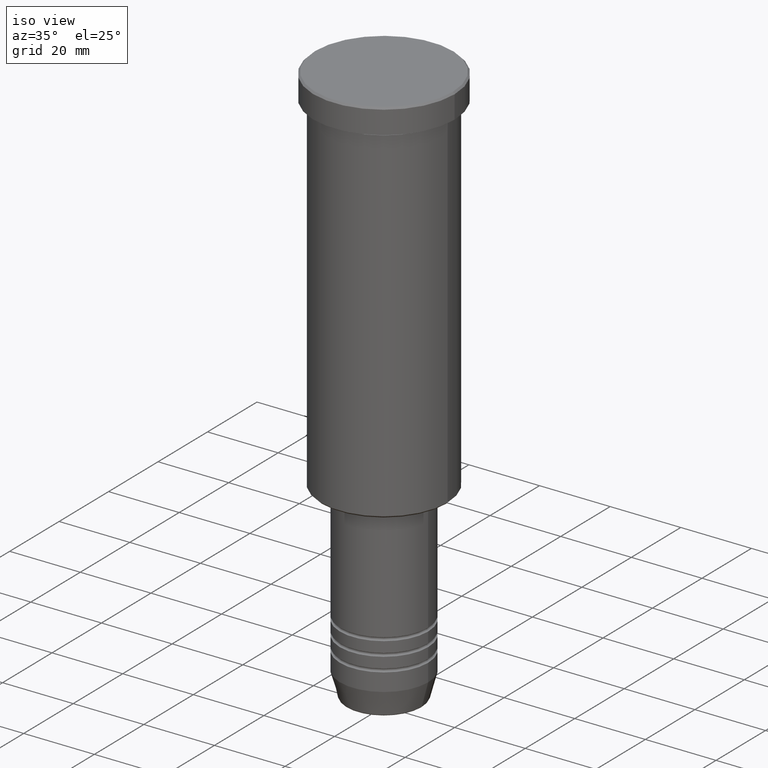
[diagram: clean part render]
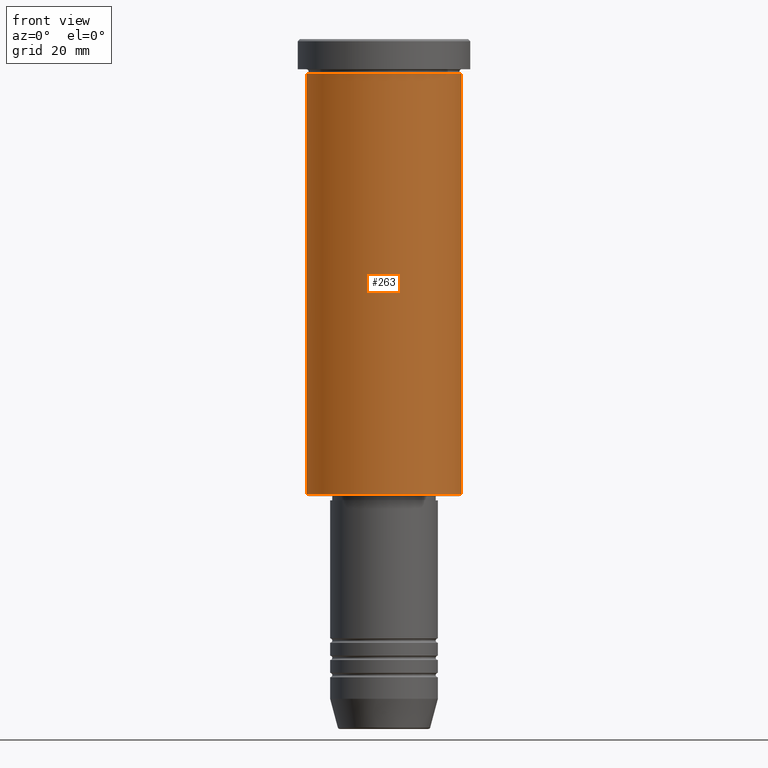
[diagram: tour spotlight — one face highlighted and labeled with its STEP entity id]
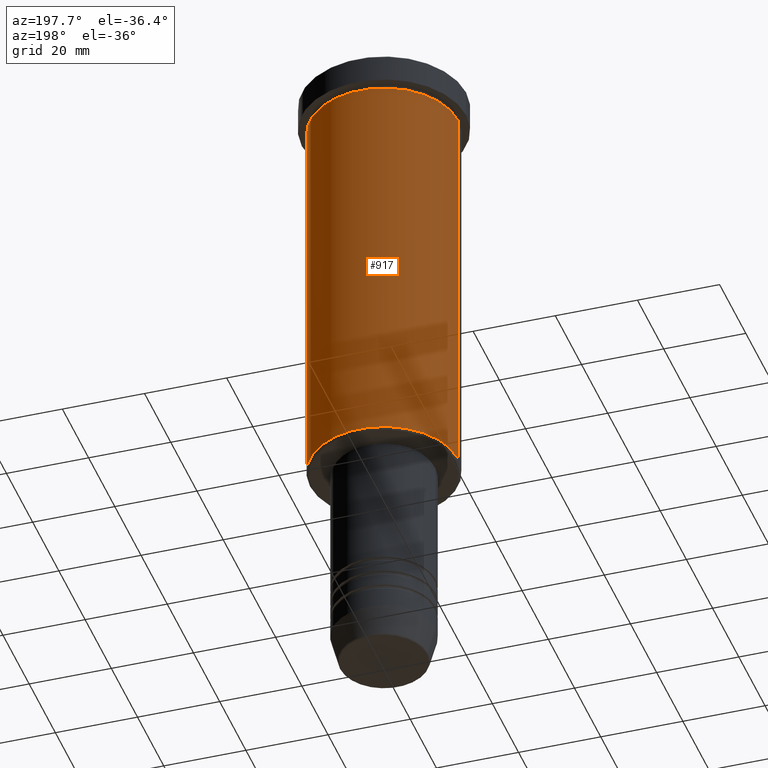
[diagram: tour spotlight — one face highlighted and labeled with its STEP entity id]
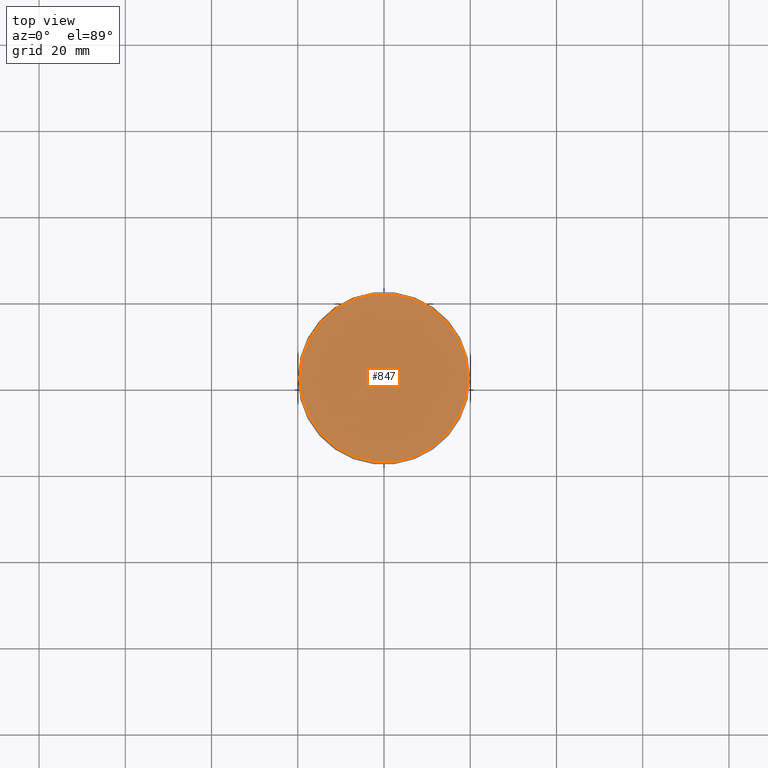
[diagram: tour spotlight — one face highlighted and labeled with its STEP entity id]
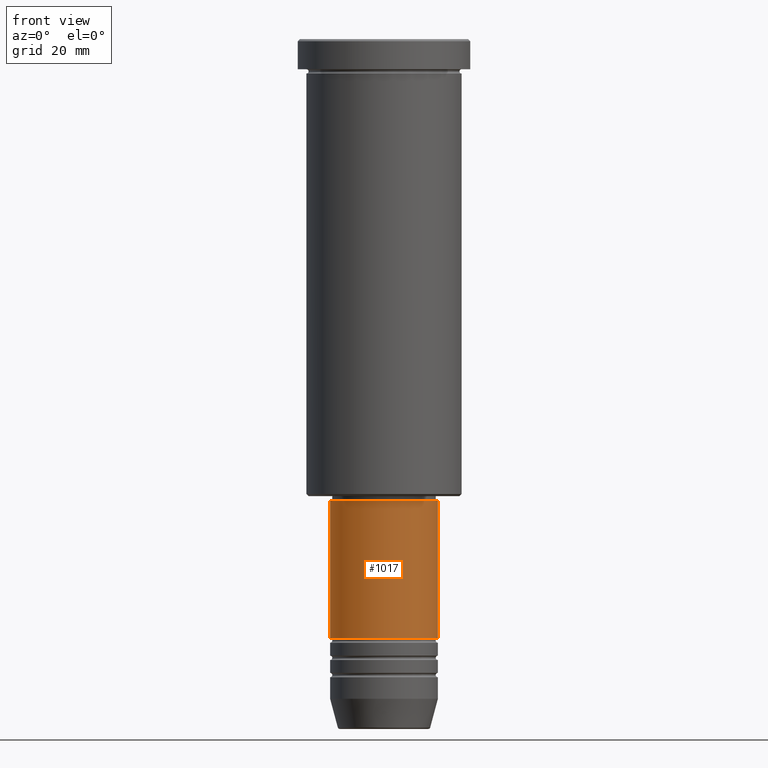
[diagram: tour spotlight — one face highlighted and labeled with its STEP entity id]
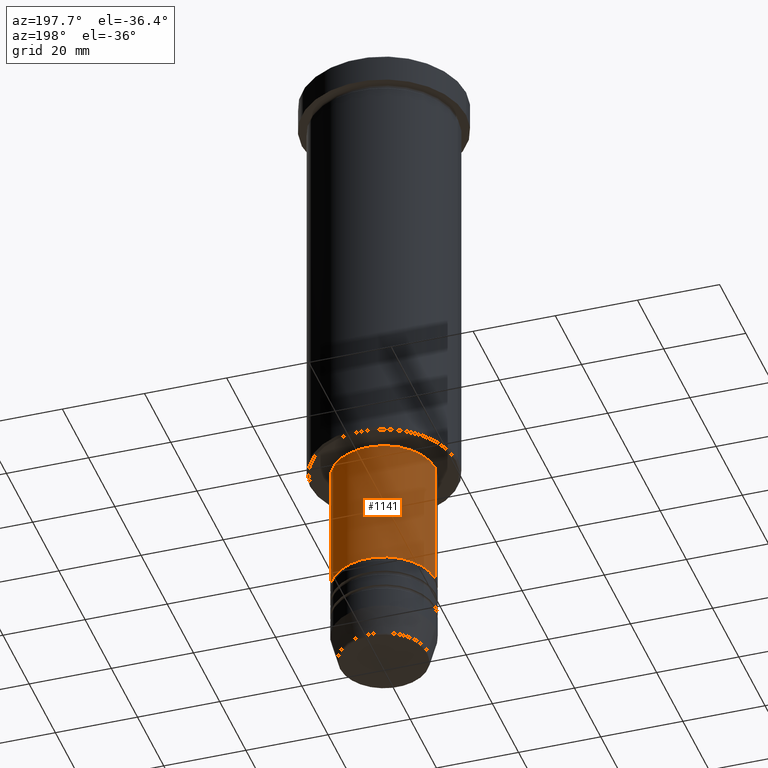
[diagram: tour spotlight — one face highlighted and labeled with its STEP entity id]
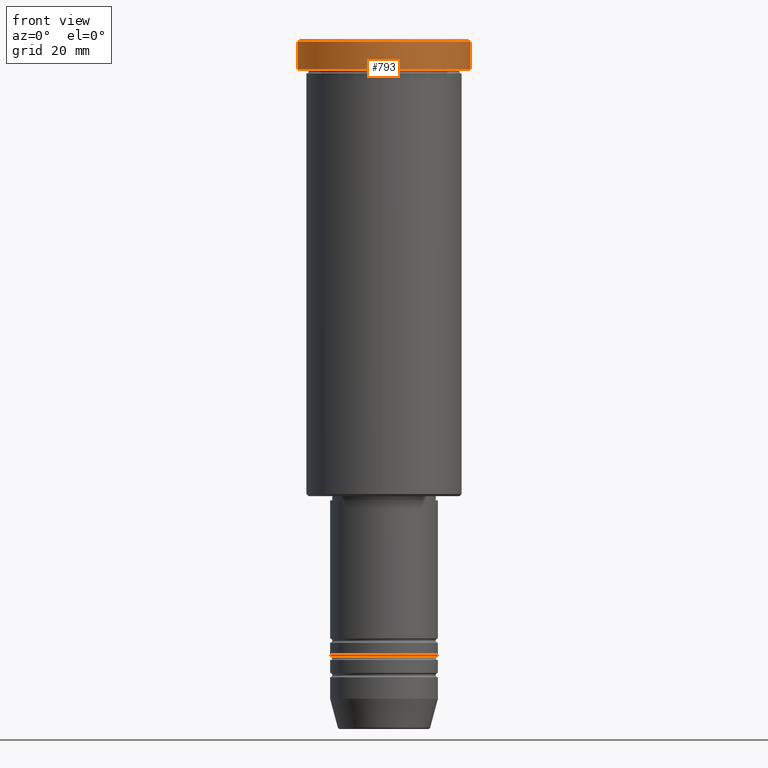
[diagram: tour spotlight — one face highlighted and labeled with its STEP entity id]
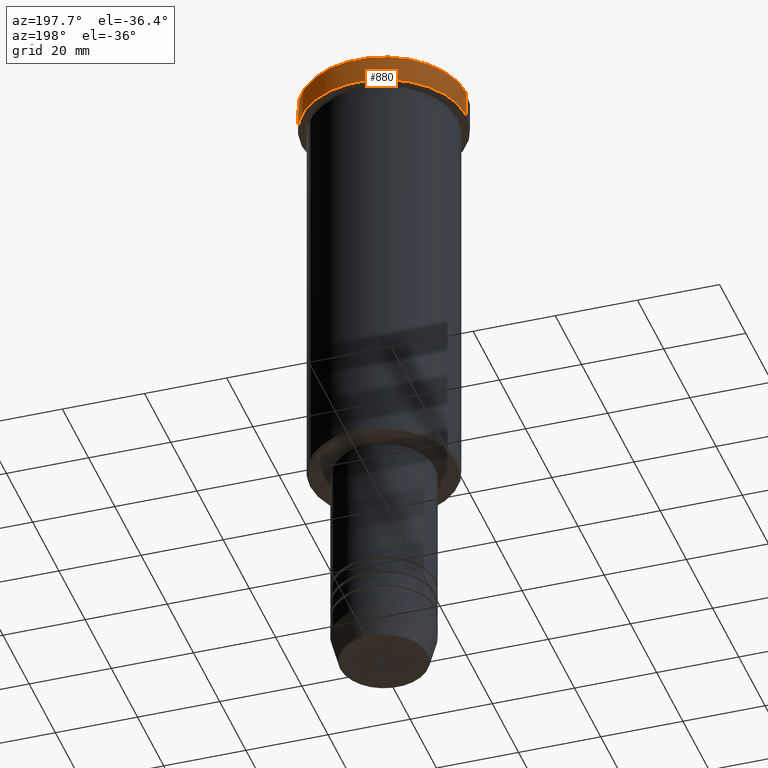
[diagram: tour spotlight — one face highlighted and labeled with its STEP entity id]
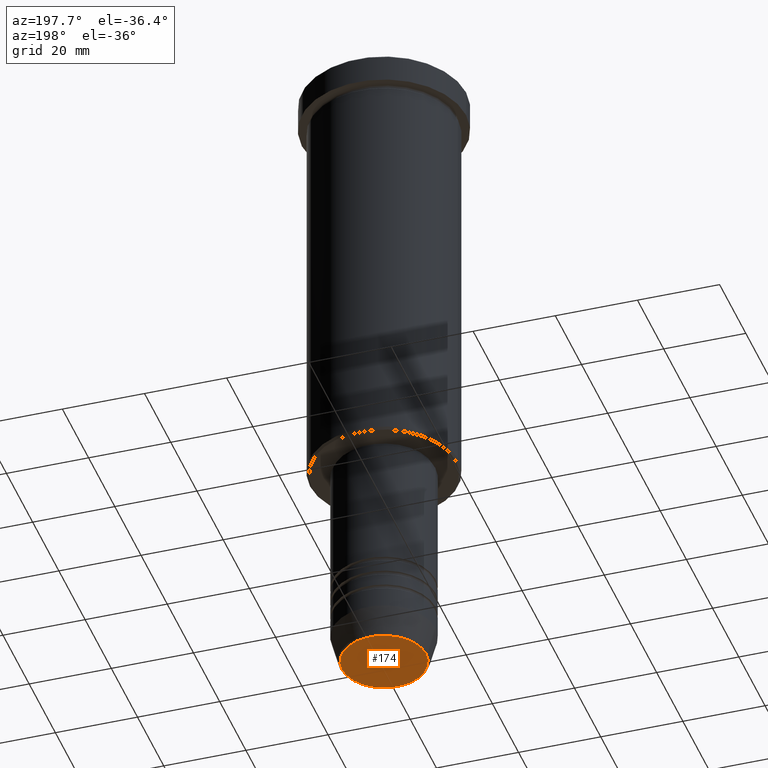
[diagram: tour spotlight — one face highlighted and labeled with its STEP entity id]
A machine part: a face-by-face anatomy tour. The part has 43 B-rep faces; the first image is the clean iso view, then the 8 largest visible faces are spotlighted one at a time (largest first), each with its STEP entity span.

Face 1 — front view, entity #263. In plain terms, the highlighted cylindrical surface (partial cylindrical patch) has radius 18 mm, axis along (-0, -0, 1).
Definition (entity closure, byte-faithful):
#1 = CARTESIAN_POINT ( 'NONE',  ( -18.00000000000000000, 2.204364238465235428E-15, -7.999999999999996447 ) ) ;
#18 = CARTESIAN_POINT ( 'NONE',  ( 0.000000000000000000, 0.000000000000000000, -7.999999999999996447 ) ) ;
#47 = LINE ( 'NONE', #591, #856 ) ;
#61 = VERTEX_POINT ( 'NONE', #948 ) ;
#75 = CARTESIAN_POINT ( 'NONE',  ( 18.00000000000000000, 0.000000000000000000, 0.000000000000000000 ) ) ;
#88 = DIRECTION ( 'NONE',  ( -0.000000000000000000, -0.000000000000000000, 1.000000000000000000 ) ) ;
#123 = CARTESIAN_POINT ( 'NONE',  ( -18.00000000000000000, 2.204364238465235428E-15, -105.5000000000000000 ) ) ;
#155 = FACE_OUTER_BOUND ( 'NONE', #677, .T. ) ;
#232 = EDGE_CURVE ( 'NONE', #849, #61, #1066, .T. ) ;
#238 = CARTESIAN_POINT ( 'NONE',  ( 0.000000000000000000, 0.000000000000000000, -105.5000000000000000 ) ) ;
#255 = DIRECTION ( 'NONE',  ( -0.000000000000000000, -0.000000000000000000, 1.000000000000000000 ) ) ;
#263 = ADVANCED_FACE ( 'NONE', ( #155 ), #698, .T. ) ;
#278 = EDGE_CURVE ( 'NONE', #61, #314, #518, .T. ) ;
#314 = VERTEX_POINT ( 'NONE', #423 ) ;
#346 = VERTEX_POINT ( 'NONE', #1 ) ;
#409 = AXIS2_PLACEMENT_3D ( 'NONE', #238, #255, #612 ) ;
#417 = CARTESIAN_POINT ( 'NONE',  ( 0.000000000000000000, 0.000000000000000000, 0.000000000000000000 ) ) ;
#423 = CARTESIAN_POINT ( 'NONE',  ( 18.00000000000000000, 0.000000000000000000, -7.999999999999996447 ) ) ;
#483 = ORIENTED_EDGE ( 'NONE', *, *, #278, .T. ) ;
#487 = DIRECTION ( 'NONE',  ( -0.000000000000000000, -0.000000000000000000, 1.000000000000000000 ) ) ;
#518 = LINE ( 'NONE', #75, #1166 ) ;
#578 = DIRECTION ( 'NONE',  ( -0.000000000000000000, -0.000000000000000000, 1.000000000000000000 ) ) ;
#591 = CARTESIAN_POINT ( 'NONE',  ( -18.00000000000000000, 2.204364238465235428E-15, 0.000000000000000000 ) ) ;
#610 = ORIENTED_EDGE ( 'NONE', *, *, #637, .F. ) ;
#612 = DIRECTION ( 'NONE',  ( -1.000000000000000000, 0.000000000000000000, 0.000000000000000000 ) ) ;
#637 = EDGE_CURVE ( 'NONE', #346, #314, #894, .T. ) ;
#677 = EDGE_LOOP ( 'NONE', ( #1030, #905, #483, #610 ) ) ;
#698 = CYLINDRICAL_SURFACE ( 'NONE', #796, 18.00000000000000000 ) ;
#796 = AXIS2_PLACEMENT_3D ( 'NONE', #417, #88, #887 ) ;
#849 = VERTEX_POINT ( 'NONE', #123 ) ;
#856 = VECTOR ( 'NONE', #487, 1000.000000000000000 ) ;
#887 = DIRECTION ( 'NONE',  ( 1.000000000000000000, 0.000000000000000000, 0.000000000000000000 ) ) ;
#894 = CIRCLE ( 'NONE', #1010, 18.00000000000000000 ) ;
#905 = ORIENTED_EDGE ( 'NONE', *, *, #232, .T. ) ;
#948 = CARTESIAN_POINT ( 'NONE',  ( 18.00000000000000000, 0.000000000000000000, -105.5000000000000000 ) ) ;
#992 = DIRECTION ( 'NONE',  ( -0.000000000000000000, -0.000000000000000000, 1.000000000000000000 ) ) ;
#1010 = AXIS2_PLACEMENT_3D ( 'NONE', #18, #578, #1121 ) ;
#1030 = ORIENTED_EDGE ( 'NONE', *, *, #1130, .F. ) ;
#1066 = CIRCLE ( 'NONE', #409, 18.00000000000000000 ) ;
#1121 = DIRECTION ( 'NONE',  ( 1.000000000000000000, 0.000000000000000000, 0.000000000000000000 ) ) ;
#1130 = EDGE_CURVE ( 'NONE', #849, #346, #47, .T. ) ;
#1166 = VECTOR ( 'NONE', #992, 1000.000000000000000 ) ;

Face 2 — auxiliary view, entity #917. In plain terms, the highlighted cylindrical surface (partial cylindrical patch) has radius 18 mm, axis along (-0, -0, 1).
Definition (entity closure, byte-faithful):
#1 = CARTESIAN_POINT ( 'NONE',  ( -18.00000000000000000, 2.204364238465235428E-15, -7.999999999999996447 ) ) ;
#47 = LINE ( 'NONE', #591, #856 ) ;
#61 = VERTEX_POINT ( 'NONE', #948 ) ;
#65 = EDGE_LOOP ( 'NONE', ( #184, #542, #1078, #603 ) ) ;
#75 = CARTESIAN_POINT ( 'NONE',  ( 18.00000000000000000, 0.000000000000000000, 0.000000000000000000 ) ) ;
#123 = CARTESIAN_POINT ( 'NONE',  ( -18.00000000000000000, 2.204364238465235428E-15, -105.5000000000000000 ) ) ;
#134 = DIRECTION ( 'NONE',  ( -0.000000000000000000, -0.000000000000000000, 1.000000000000000000 ) ) ;
#184 = ORIENTED_EDGE ( 'NONE', *, *, #384, .T. ) ;
#199 = DIRECTION ( 'NONE',  ( -0.000000000000000000, -0.000000000000000000, 1.000000000000000000 ) ) ;
#278 = EDGE_CURVE ( 'NONE', #61, #314, #518, .T. ) ;
#288 = CARTESIAN_POINT ( 'NONE',  ( 0.000000000000000000, 0.000000000000000000, 0.000000000000000000 ) ) ;
#314 = VERTEX_POINT ( 'NONE', #423 ) ;
#346 = VERTEX_POINT ( 'NONE', #1 ) ;
#371 = CIRCLE ( 'NONE', #512, 18.00000000000000000 ) ;
#384 = EDGE_CURVE ( 'NONE', #61, #849, #371, .T. ) ;
#423 = CARTESIAN_POINT ( 'NONE',  ( 18.00000000000000000, 0.000000000000000000, -7.999999999999996447 ) ) ;
#452 = AXIS2_PLACEMENT_3D ( 'NONE', #288, #199, #922 ) ;
#462 = FACE_OUTER_BOUND ( 'NONE', #65, .T. ) ;
#487 = DIRECTION ( 'NONE',  ( -0.000000000000000000, -0.000000000000000000, 1.000000000000000000 ) ) ;
#512 = AXIS2_PLACEMENT_3D ( 'NONE', #584, #134, #857 ) ;
#514 = AXIS2_PLACEMENT_3D ( 'NONE', #1171, #710, #1074 ) ;
#518 = LINE ( 'NONE', #75, #1166 ) ;
#542 = ORIENTED_EDGE ( 'NONE', *, *, #1130, .T. ) ;
#584 = CARTESIAN_POINT ( 'NONE',  ( 0.000000000000000000, 0.000000000000000000, -105.5000000000000000 ) ) ;
#591 = CARTESIAN_POINT ( 'NONE',  ( -18.00000000000000000, 2.204364238465235428E-15, 0.000000000000000000 ) ) ;
#603 = ORIENTED_EDGE ( 'NONE', *, *, #278, .F. ) ;
#696 = EDGE_CURVE ( 'NONE', #314, #346, #777, .T. ) ;
#710 = DIRECTION ( 'NONE',  ( -0.000000000000000000, -0.000000000000000000, 1.000000000000000000 ) ) ;
#777 = CIRCLE ( 'NONE', #514, 18.00000000000000000 ) ;
#823 = CYLINDRICAL_SURFACE ( 'NONE', #452, 18.00000000000000000 ) ;
#849 = VERTEX_POINT ( 'NONE', #123 ) ;
#856 = VECTOR ( 'NONE', #487, 1000.000000000000000 ) ;
#857 = DIRECTION ( 'NONE',  ( -1.000000000000000000, 0.000000000000000000, 0.000000000000000000 ) ) ;
#917 = ADVANCED_FACE ( 'NONE', ( #462 ), #823, .T. ) ;
#922 = DIRECTION ( 'NONE',  ( 1.000000000000000000, 0.000000000000000000, 0.000000000000000000 ) ) ;
#948 = CARTESIAN_POINT ( 'NONE',  ( 18.00000000000000000, 0.000000000000000000, -105.5000000000000000 ) ) ;
#992 = DIRECTION ( 'NONE',  ( -0.000000000000000000, -0.000000000000000000, 1.000000000000000000 ) ) ;
#1074 = DIRECTION ( 'NONE',  ( 1.000000000000000000, 0.000000000000000000, 0.000000000000000000 ) ) ;
#1078 = ORIENTED_EDGE ( 'NONE', *, *, #696, .F. ) ;
#1130 = EDGE_CURVE ( 'NONE', #849, #346, #47, .T. ) ;
#1166 = VECTOR ( 'NONE', #992, 1000.000000000000000 ) ;
#1171 = CARTESIAN_POINT ( 'NONE',  ( 0.000000000000000000, 0.000000000000000000, -7.999999999999996447 ) ) ;

Face 3 — top view, entity #847. In plain terms, the highlighted planar face has unit normal (0, -0, 1).
Definition (entity closure, byte-faithful):
#22 = CARTESIAN_POINT ( 'NONE',  ( 19.49999999999996092, 2.418677428316020359E-15, 0.000000000000000000 ) ) ;
#26 = CARTESIAN_POINT ( 'NONE',  ( 0.000000000000000000, 0.000000000000000000, 0.000000000000000000 ) ) ;
#27 = PLANE ( 'NONE',  #193 ) ;
#193 = AXIS2_PLACEMENT_3D ( 'NONE', #214, #370, #581 ) ;
#196 = EDGE_LOOP ( 'NONE', ( #424, #958 ) ) ;
#214 = CARTESIAN_POINT ( 'NONE',  ( 0.000000000000000000, 0.000000000000000000, 0.000000000000000000 ) ) ;
#226 = AXIS2_PLACEMENT_3D ( 'NONE', #26, #396, #1027 ) ;
#283 = AXIS2_PLACEMENT_3D ( 'NONE', #521, #631, #720 ) ;
#370 = DIRECTION ( 'NONE',  ( 0.000000000000000000, -0.000000000000000000, 1.000000000000000000 ) ) ;
#388 = FACE_OUTER_BOUND ( 'NONE', #196, .T. ) ;
#396 = DIRECTION ( 'NONE',  ( -0.000000000000000000, -0.000000000000000000, 1.000000000000000000 ) ) ;
#412 = EDGE_CURVE ( 'NONE', #802, #1095, #702, .T. ) ;
#424 = ORIENTED_EDGE ( 'NONE', *, *, #412, .T. ) ;
#521 = CARTESIAN_POINT ( 'NONE',  ( 0.000000000000000000, 0.000000000000000000, 0.000000000000000000 ) ) ;
#544 = EDGE_CURVE ( 'NONE', #1095, #802, #608, .T. ) ;
#581 = DIRECTION ( 'NONE',  ( 1.000000000000000000, 0.000000000000000000, 0.000000000000000000 ) ) ;
#608 = CIRCLE ( 'NONE', #283, 19.49999999999996092 ) ;
#631 = DIRECTION ( 'NONE',  ( -0.000000000000000000, -0.000000000000000000, 1.000000000000000000 ) ) ;
#702 = CIRCLE ( 'NONE', #226, 19.49999999999996092 ) ;
#720 = DIRECTION ( 'NONE',  ( 1.000000000000000000, 0.000000000000000000, 0.000000000000000000 ) ) ;
#802 = VERTEX_POINT ( 'NONE', #1139 ) ;
#847 = ADVANCED_FACE ( 'NONE', ( #388 ), #27, .T. ) ;
#958 = ORIENTED_EDGE ( 'NONE', *, *, #544, .T. ) ;
#1027 = DIRECTION ( 'NONE',  ( 1.000000000000000000, 0.000000000000000000, 0.000000000000000000 ) ) ;
#1095 = VERTEX_POINT ( 'NONE', #22 ) ;
#1139 = CARTESIAN_POINT ( 'NONE',  ( -19.49999999999996092, 0.000000000000000000, 0.000000000000000000 ) ) ;

Face 4 — front view, entity #1017. In plain terms, the highlighted cylindrical surface (partial cylindrical patch) has radius 12.5 mm, axis along (-0, -0, 1).
Definition (entity closure, byte-faithful):
#37 = DIRECTION ( 'NONE',  ( -0.000000000000000000, -0.000000000000000000, 1.000000000000000000 ) ) ;
#46 = CARTESIAN_POINT ( 'NONE',  ( 12.50000000000000000, 0.000000000000000000, 0.000000000000000000 ) ) ;
#89 = ORIENTED_EDGE ( 'NONE', *, *, #1102, .F. ) ;
#124 = VERTEX_POINT ( 'NONE', #1103 ) ;
#146 = EDGE_CURVE ( 'NONE', #124, #313, #1120, .T. ) ;
#163 = CARTESIAN_POINT ( 'NONE',  ( 12.50000000000000000, 0.000000000000000000, -138.9999999999999716 ) ) ;
#206 = CIRCLE ( 'NONE', #1104, 12.50000000000000000 ) ;
#217 = EDGE_LOOP ( 'NONE', ( #89, #765, #824, #981 ) ) ;
#272 = DIRECTION ( 'NONE',  ( 1.000000000000000000, 0.000000000000000000, 0.000000000000000000 ) ) ;
#313 = VERTEX_POINT ( 'NONE', #1060 ) ;
#352 = EDGE_CURVE ( 'NONE', #1034, #725, #206, .T. ) ;
#356 = CARTESIAN_POINT ( 'NONE',  ( 0.000000000000000000, 0.000000000000000000, -138.9999999999999716 ) ) ;
#368 = LINE ( 'NONE', #736, #818 ) ;
#392 = CARTESIAN_POINT ( 'NONE',  ( -12.50000000000000000, 1.530808498934191521E-15, -138.9999999999999716 ) ) ;
#543 = DIRECTION ( 'NONE',  ( -0.000000000000000000, -0.000000000000000000, 1.000000000000000000 ) ) ;
#573 = AXIS2_PLACEMENT_3D ( 'NONE', #675, #37, #1157 ) ;
#675 = CARTESIAN_POINT ( 'NONE',  ( 0.000000000000000000, 0.000000000000000000, 0.000000000000000000 ) ) ;
#725 = VERTEX_POINT ( 'NONE', #163 ) ;
#736 = CARTESIAN_POINT ( 'NONE',  ( -12.50000000000000000, 1.530808498934191521E-15, 0.000000000000000000 ) ) ;
#741 = CARTESIAN_POINT ( 'NONE',  ( 0.000000000000000000, 0.000000000000000000, -107.0000000000000142 ) ) ;
#765 = ORIENTED_EDGE ( 'NONE', *, *, #352, .T. ) ;
#771 = LINE ( 'NONE', #46, #835 ) ;
#814 = DIRECTION ( 'NONE',  ( 1.000000000000000000, 0.000000000000000000, 0.000000000000000000 ) ) ;
#818 = VECTOR ( 'NONE', #1112, 1000.000000000000000 ) ;
#824 = ORIENTED_EDGE ( 'NONE', *, *, #985, .T. ) ;
#835 = VECTOR ( 'NONE', #877, 1000.000000000000000 ) ;
#877 = DIRECTION ( 'NONE',  ( -0.000000000000000000, -0.000000000000000000, 1.000000000000000000 ) ) ;
#972 = AXIS2_PLACEMENT_3D ( 'NONE', #741, #543, #814 ) ;
#981 = ORIENTED_EDGE ( 'NONE', *, *, #146, .F. ) ;
#985 = EDGE_CURVE ( 'NONE', #725, #313, #771, .T. ) ;
#1017 = ADVANCED_FACE ( 'NONE', ( #1140 ), #1136, .T. ) ;
#1034 = VERTEX_POINT ( 'NONE', #392 ) ;
#1060 = CARTESIAN_POINT ( 'NONE',  ( 12.50000000000000000, 0.000000000000000000, -107.0000000000000142 ) ) ;
#1089 = DIRECTION ( 'NONE',  ( -0.000000000000000000, -0.000000000000000000, 1.000000000000000000 ) ) ;
#1102 = EDGE_CURVE ( 'NONE', #1034, #124, #368, .T. ) ;
#1103 = CARTESIAN_POINT ( 'NONE',  ( -12.50000000000000000, 1.530808498934191521E-15, -107.0000000000000142 ) ) ;
#1104 = AXIS2_PLACEMENT_3D ( 'NONE', #356, #1089, #272 ) ;
#1112 = DIRECTION ( 'NONE',  ( -0.000000000000000000, -0.000000000000000000, 1.000000000000000000 ) ) ;
#1120 = CIRCLE ( 'NONE', #972, 12.50000000000000000 ) ;
#1136 = CYLINDRICAL_SURFACE ( 'NONE', #573, 12.50000000000000000 ) ;
#1140 = FACE_OUTER_BOUND ( 'NONE', #217, .T. ) ;
#1157 = DIRECTION ( 'NONE',  ( 1.000000000000000000, 0.000000000000000000, 0.000000000000000000 ) ) ;

Face 5 — auxiliary view, entity #1141. In plain terms, the highlighted cylindrical surface (partial cylindrical patch) has radius 12.5 mm, axis along (-0, -0, 1).
Definition (entity closure, byte-faithful):
#13 = DIRECTION ( 'NONE',  ( 1.000000000000000000, 0.000000000000000000, 0.000000000000000000 ) ) ;
#14 = DIRECTION ( 'NONE',  ( -0.000000000000000000, -0.000000000000000000, 1.000000000000000000 ) ) ;
#46 = CARTESIAN_POINT ( 'NONE',  ( 12.50000000000000000, 0.000000000000000000, 0.000000000000000000 ) ) ;
#55 = DIRECTION ( 'NONE',  ( 1.000000000000000000, 0.000000000000000000, 0.000000000000000000 ) ) ;
#124 = VERTEX_POINT ( 'NONE', #1103 ) ;
#127 = CARTESIAN_POINT ( 'NONE',  ( 0.000000000000000000, 0.000000000000000000, 0.000000000000000000 ) ) ;
#163 = CARTESIAN_POINT ( 'NONE',  ( 12.50000000000000000, 0.000000000000000000, -138.9999999999999716 ) ) ;
#253 = DIRECTION ( 'NONE',  ( -0.000000000000000000, -0.000000000000000000, 1.000000000000000000 ) ) ;
#273 = ORIENTED_EDGE ( 'NONE', *, *, #985, .F. ) ;
#287 = AXIS2_PLACEMENT_3D ( 'NONE', #127, #863, #55 ) ;
#289 = CARTESIAN_POINT ( 'NONE',  ( 0.000000000000000000, 0.000000000000000000, -138.9999999999999716 ) ) ;
#313 = VERTEX_POINT ( 'NONE', #1060 ) ;
#358 = ORIENTED_EDGE ( 'NONE', *, *, #1102, .T. ) ;
#368 = LINE ( 'NONE', #736, #818 ) ;
#392 = CARTESIAN_POINT ( 'NONE',  ( -12.50000000000000000, 1.530808498934191521E-15, -138.9999999999999716 ) ) ;
#501 = CYLINDRICAL_SURFACE ( 'NONE', #287, 12.50000000000000000 ) ;
#531 = CARTESIAN_POINT ( 'NONE',  ( 0.000000000000000000, 0.000000000000000000, -107.0000000000000142 ) ) ;
#575 = AXIS2_PLACEMENT_3D ( 'NONE', #531, #253, #896 ) ;
#673 = ORIENTED_EDGE ( 'NONE', *, *, #1098, .T. ) ;
#705 = CIRCLE ( 'NONE', #575, 12.50000000000000000 ) ;
#725 = VERTEX_POINT ( 'NONE', #163 ) ;
#736 = CARTESIAN_POINT ( 'NONE',  ( -12.50000000000000000, 1.530808498934191521E-15, 0.000000000000000000 ) ) ;
#771 = LINE ( 'NONE', #46, #835 ) ;
#818 = VECTOR ( 'NONE', #1112, 1000.000000000000000 ) ;
#835 = VECTOR ( 'NONE', #877, 1000.000000000000000 ) ;
#863 = DIRECTION ( 'NONE',  ( -0.000000000000000000, -0.000000000000000000, 1.000000000000000000 ) ) ;
#877 = DIRECTION ( 'NONE',  ( -0.000000000000000000, -0.000000000000000000, 1.000000000000000000 ) ) ;
#896 = DIRECTION ( 'NONE',  ( 1.000000000000000000, 0.000000000000000000, 0.000000000000000000 ) ) ;
#985 = EDGE_CURVE ( 'NONE', #725, #313, #771, .T. ) ;
#991 = ORIENTED_EDGE ( 'NONE', *, *, #1182, .F. ) ;
#996 = AXIS2_PLACEMENT_3D ( 'NONE', #289, #14, #13 ) ;
#1034 = VERTEX_POINT ( 'NONE', #392 ) ;
#1043 = FACE_OUTER_BOUND ( 'NONE', #1159, .T. ) ;
#1050 = CIRCLE ( 'NONE', #996, 12.50000000000000000 ) ;
#1060 = CARTESIAN_POINT ( 'NONE',  ( 12.50000000000000000, 0.000000000000000000, -107.0000000000000142 ) ) ;
#1098 = EDGE_CURVE ( 'NONE', #725, #1034, #1050, .T. ) ;
#1102 = EDGE_CURVE ( 'NONE', #1034, #124, #368, .T. ) ;
#1103 = CARTESIAN_POINT ( 'NONE',  ( -12.50000000000000000, 1.530808498934191521E-15, -107.0000000000000142 ) ) ;
#1112 = DIRECTION ( 'NONE',  ( -0.000000000000000000, -0.000000000000000000, 1.000000000000000000 ) ) ;
#1141 = ADVANCED_FACE ( 'NONE', ( #1043 ), #501, .T. ) ;
#1159 = EDGE_LOOP ( 'NONE', ( #673, #358, #991, #273 ) ) ;
#1182 = EDGE_CURVE ( 'NONE', #313, #124, #705, .T. ) ;

Face 6 — front view, entity #793. In plain terms, the highlighted cylindrical surface (partial cylindrical patch) has radius 20 mm, axis along (-0, -0, 1).
Definition (entity closure, byte-faithful):
#3 = CIRCLE ( 'NONE', #151, 20.00000000000000000 ) ;
#90 = EDGE_CURVE ( 'NONE', #615, #326, #842, .T. ) ;
#109 = DIRECTION ( 'NONE',  ( 0.000000000000000000, 0.000000000000000000, -1.000000000000000000 ) ) ;
#130 = CYLINDRICAL_SURFACE ( 'NONE', #1069, 20.00000000000000000 ) ;
#151 = AXIS2_PLACEMENT_3D ( 'NONE', #768, #656, #577 ) ;
#161 = EDGE_CURVE ( 'NONE', #1041, #808, #960, .T. ) ;
#316 = DIRECTION ( 'NONE',  ( -0.000000000000000000, -0.000000000000000000, 1.000000000000000000 ) ) ;
#323 = CIRCLE ( 'NONE', #738, 20.00000000000000000 ) ;
#326 = VERTEX_POINT ( 'NONE', #549 ) ;
#343 = CARTESIAN_POINT ( 'NONE',  ( 20.00000000000000000, 0.000000000000000000, -0.5000000000000525135 ) ) ;
#367 = CARTESIAN_POINT ( 'NONE',  ( -20.00000000000000000, 2.449293598294706513E-15, 0.000000000000000000 ) ) ;
#400 = DIRECTION ( 'NONE',  ( -0.000000000000000000, -0.000000000000000000, 1.000000000000000000 ) ) ;
#403 = CARTESIAN_POINT ( 'NONE',  ( 0.000000000000000000, 0.000000000000000000, 0.000000000000000000 ) ) ;
#433 = EDGE_CURVE ( 'NONE', #615, #1041, #3, .T. ) ;
#493 = FACE_OUTER_BOUND ( 'NONE', #509, .T. ) ;
#509 = EDGE_LOOP ( 'NONE', ( #1073, #1070, #727, #629 ) ) ;
#549 = CARTESIAN_POINT ( 'NONE',  ( -20.00000000000000000, 2.449293598294706513E-15, -0.5000000000000525135 ) ) ;
#562 = EDGE_CURVE ( 'NONE', #808, #326, #323, .T. ) ;
#577 = DIRECTION ( 'NONE',  ( 1.000000000000000000, 0.000000000000000000, 0.000000000000000000 ) ) ;
#615 = VERTEX_POINT ( 'NONE', #730 ) ;
#629 = ORIENTED_EDGE ( 'NONE', *, *, #562, .T. ) ;
#656 = DIRECTION ( 'NONE',  ( -0.000000000000000000, -0.000000000000000000, 1.000000000000000000 ) ) ;
#684 = CARTESIAN_POINT ( 'NONE',  ( 20.00000000000000000, 0.000000000000000000, -6.999999999999995559 ) ) ;
#711 = DIRECTION ( 'NONE',  ( 1.000000000000000000, 0.000000000000000000, 0.000000000000000000 ) ) ;
#727 = ORIENTED_EDGE ( 'NONE', *, *, #161, .T. ) ;
#730 = CARTESIAN_POINT ( 'NONE',  ( -20.00000000000000000, 2.449293598294706513E-15, -6.999999999999995559 ) ) ;
#734 = VECTOR ( 'NONE', #1019, 1000.000000000000000 ) ;
#738 = AXIS2_PLACEMENT_3D ( 'NONE', #895, #109, #711 ) ;
#754 = VECTOR ( 'NONE', #316, 1000.000000000000000 ) ;
#768 = CARTESIAN_POINT ( 'NONE',  ( 0.000000000000000000, 0.000000000000000000, -6.999999999999995559 ) ) ;
#793 = ADVANCED_FACE ( 'NONE', ( #493 ), #130, .T. ) ;
#808 = VERTEX_POINT ( 'NONE', #343 ) ;
#842 = LINE ( 'NONE', #367, #734 ) ;
#895 = CARTESIAN_POINT ( 'NONE',  ( 0.000000000000000000, 0.000000000000000000, -0.5000000000000525135 ) ) ;
#942 = CARTESIAN_POINT ( 'NONE',  ( 20.00000000000000000, 0.000000000000000000, 0.000000000000000000 ) ) ;
#955 = DIRECTION ( 'NONE',  ( 1.000000000000000000, 0.000000000000000000, 0.000000000000000000 ) ) ;
#960 = LINE ( 'NONE', #942, #754 ) ;
#1019 = DIRECTION ( 'NONE',  ( -0.000000000000000000, -0.000000000000000000, 1.000000000000000000 ) ) ;
#1041 = VERTEX_POINT ( 'NONE', #684 ) ;
#1069 = AXIS2_PLACEMENT_3D ( 'NONE', #403, #400, #955 ) ;
#1070 = ORIENTED_EDGE ( 'NONE', *, *, #433, .T. ) ;
#1073 = ORIENTED_EDGE ( 'NONE', *, *, #90, .F. ) ;

Face 7 — auxiliary view, entity #880. In plain terms, the highlighted cylindrical surface (partial cylindrical patch) has radius 20 mm, axis along (-0, -0, 1).
Definition (entity closure, byte-faithful):
#5 = AXIS2_PLACEMENT_3D ( 'NONE', #430, #945, #588 ) ;
#42 = CARTESIAN_POINT ( 'NONE',  ( 0.000000000000000000, 0.000000000000000000, -0.5000000000000525135 ) ) ;
#90 = EDGE_CURVE ( 'NONE', #615, #326, #842, .T. ) ;
#161 = EDGE_CURVE ( 'NONE', #1041, #808, #960, .T. ) ;
#300 = DIRECTION ( 'NONE',  ( 1.000000000000000000, 0.000000000000000000, 0.000000000000000000 ) ) ;
#316 = DIRECTION ( 'NONE',  ( -0.000000000000000000, -0.000000000000000000, 1.000000000000000000 ) ) ;
#326 = VERTEX_POINT ( 'NONE', #549 ) ;
#343 = CARTESIAN_POINT ( 'NONE',  ( 20.00000000000000000, 0.000000000000000000, -0.5000000000000525135 ) ) ;
#367 = CARTESIAN_POINT ( 'NONE',  ( -20.00000000000000000, 2.449293598294706513E-15, 0.000000000000000000 ) ) ;
#430 = CARTESIAN_POINT ( 'NONE',  ( 0.000000000000000000, 0.000000000000000000, -6.999999999999995559 ) ) ;
#549 = CARTESIAN_POINT ( 'NONE',  ( -20.00000000000000000, 2.449293598294706513E-15, -0.5000000000000525135 ) ) ;
#556 = AXIS2_PLACEMENT_3D ( 'NONE', #42, #563, #919 ) ;
#563 = DIRECTION ( 'NONE',  ( 0.000000000000000000, 0.000000000000000000, -1.000000000000000000 ) ) ;
#588 = DIRECTION ( 'NONE',  ( 1.000000000000000000, 0.000000000000000000, 0.000000000000000000 ) ) ;
#604 = CARTESIAN_POINT ( 'NONE',  ( 0.000000000000000000, 0.000000000000000000, 0.000000000000000000 ) ) ;
#615 = VERTEX_POINT ( 'NONE', #730 ) ;
#684 = CARTESIAN_POINT ( 'NONE',  ( 20.00000000000000000, 0.000000000000000000, -6.999999999999995559 ) ) ;
#699 = ORIENTED_EDGE ( 'NONE', *, *, #161, .F. ) ;
#724 = AXIS2_PLACEMENT_3D ( 'NONE', #604, #973, #300 ) ;
#730 = CARTESIAN_POINT ( 'NONE',  ( -20.00000000000000000, 2.449293598294706513E-15, -6.999999999999995559 ) ) ;
#734 = VECTOR ( 'NONE', #1019, 1000.000000000000000 ) ;
#739 = FACE_OUTER_BOUND ( 'NONE', #1161, .T. ) ;
#754 = VECTOR ( 'NONE', #316, 1000.000000000000000 ) ;
#766 = EDGE_CURVE ( 'NONE', #1041, #615, #1026, .T. ) ;
#769 = ORIENTED_EDGE ( 'NONE', *, *, #875, .T. ) ;
#781 = CYLINDRICAL_SURFACE ( 'NONE', #724, 20.00000000000000000 ) ;
#808 = VERTEX_POINT ( 'NONE', #343 ) ;
#842 = LINE ( 'NONE', #367, #734 ) ;
#875 = EDGE_CURVE ( 'NONE', #326, #808, #1125, .T. ) ;
#880 = ADVANCED_FACE ( 'NONE', ( #739 ), #781, .T. ) ;
#919 = DIRECTION ( 'NONE',  ( 1.000000000000000000, 0.000000000000000000, 0.000000000000000000 ) ) ;
#942 = CARTESIAN_POINT ( 'NONE',  ( 20.00000000000000000, 0.000000000000000000, 0.000000000000000000 ) ) ;
#945 = DIRECTION ( 'NONE',  ( -0.000000000000000000, -0.000000000000000000, 1.000000000000000000 ) ) ;
#960 = LINE ( 'NONE', #942, #754 ) ;
#973 = DIRECTION ( 'NONE',  ( -0.000000000000000000, -0.000000000000000000, 1.000000000000000000 ) ) ;
#1019 = DIRECTION ( 'NONE',  ( -0.000000000000000000, -0.000000000000000000, 1.000000000000000000 ) ) ;
#1026 = CIRCLE ( 'NONE', #5, 20.00000000000000000 ) ;
#1041 = VERTEX_POINT ( 'NONE', #684 ) ;
#1125 = CIRCLE ( 'NONE', #556, 20.00000000000000000 ) ;
#1161 = EDGE_LOOP ( 'NONE', ( #1183, #1173, #769, #699 ) ) ;
#1173 = ORIENTED_EDGE ( 'NONE', *, *, #90, .T. ) ;
#1183 = ORIENTED_EDGE ( 'NONE', *, *, #766, .T. ) ;

Face 8 — auxiliary view, entity #174. In plain terms, the highlighted planar face has unit normal (0, -0, 1).
Definition (entity closure, byte-faithful):
#6 = CIRCLE ( 'NONE', #284, 10.24069215899265650 ) ;
#38 = CIRCLE ( 'NONE', #533, 10.24069215899265650 ) ;
#119 = FACE_OUTER_BOUND ( 'NONE', #398, .T. ) ;
#174 = ADVANCED_FACE ( 'NONE', ( #119 ), #405, .F. ) ;
#221 = DIRECTION ( 'NONE',  ( 0.000000000000000000, 0.000000000000000000, -1.000000000000000000 ) ) ;
#284 = AXIS2_PLACEMENT_3D ( 'NONE', #1062, #885, #520 ) ;
#303 = DIRECTION ( 'NONE',  ( 0.000000000000000000, -0.000000000000000000, 1.000000000000000000 ) ) ;
#398 = EDGE_LOOP ( 'NONE', ( #600, #1076 ) ) ;
#405 = PLANE ( 'NONE',  #1065 ) ;
#451 = EDGE_CURVE ( 'NONE', #780, #1090, #38, .T. ) ;
#520 = DIRECTION ( 'NONE',  ( 1.000000000000000000, 0.000000000000000000, 0.000000000000000000 ) ) ;
#533 = AXIS2_PLACEMENT_3D ( 'NONE', #846, #221, #580 ) ;
#580 = DIRECTION ( 'NONE',  ( 1.000000000000000000, 0.000000000000000000, 0.000000000000000000 ) ) ;
#582 = CARTESIAN_POINT ( 'NONE',  ( 10.24069215899265650, 0.000000000000000000, -160.0000000000000284 ) ) ;
#600 = ORIENTED_EDGE ( 'NONE', *, *, #451, .T. ) ;
#695 = CARTESIAN_POINT ( 'NONE',  ( -10.24069215899265650, 1.283696036640842573E-15, -160.0000000000000284 ) ) ;
#780 = VERTEX_POINT ( 'NONE', #582 ) ;
#846 = CARTESIAN_POINT ( 'NONE',  ( 0.000000000000000000, 0.000000000000000000, -160.0000000000000284 ) ) ;
#854 = CARTESIAN_POINT ( 'NONE',  ( 0.000000000000000000, 0.000000000000000000, -160.0000000000000284 ) ) ;
#885 = DIRECTION ( 'NONE',  ( 0.000000000000000000, 0.000000000000000000, -1.000000000000000000 ) ) ;
#1029 = DIRECTION ( 'NONE',  ( 1.000000000000000000, 0.000000000000000000, 0.000000000000000000 ) ) ;
#1062 = CARTESIAN_POINT ( 'NONE',  ( 0.000000000000000000, 0.000000000000000000, -160.0000000000000284 ) ) ;
#1065 = AXIS2_PLACEMENT_3D ( 'NONE', #854, #303, #1029 ) ;
#1076 = ORIENTED_EDGE ( 'NONE', *, *, #1077, .T. ) ;
#1077 = EDGE_CURVE ( 'NONE', #1090, #780, #6, .T. ) ;
#1090 = VERTEX_POINT ( 'NONE', #695 ) ;